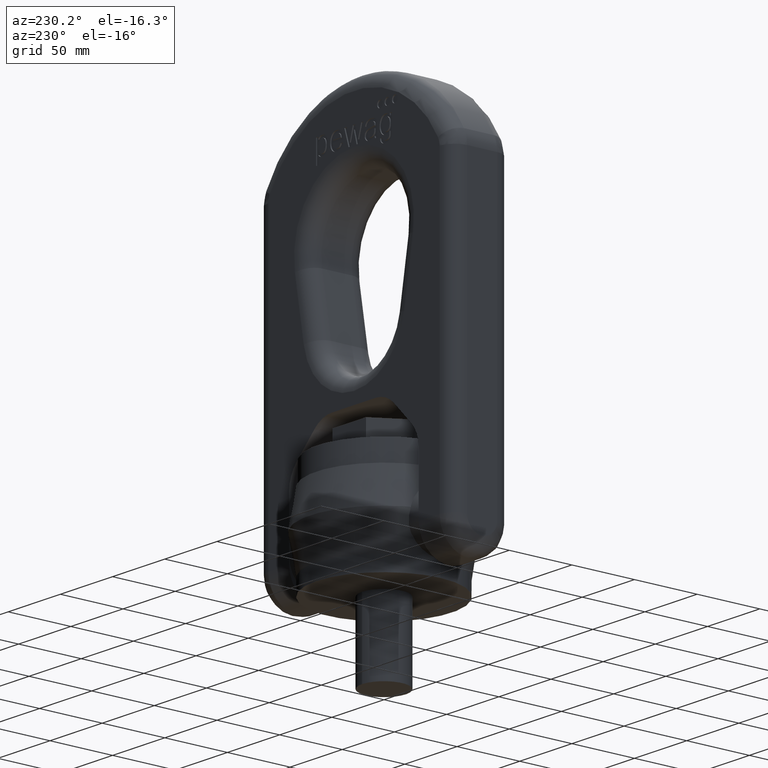
[diagram: clean part render]
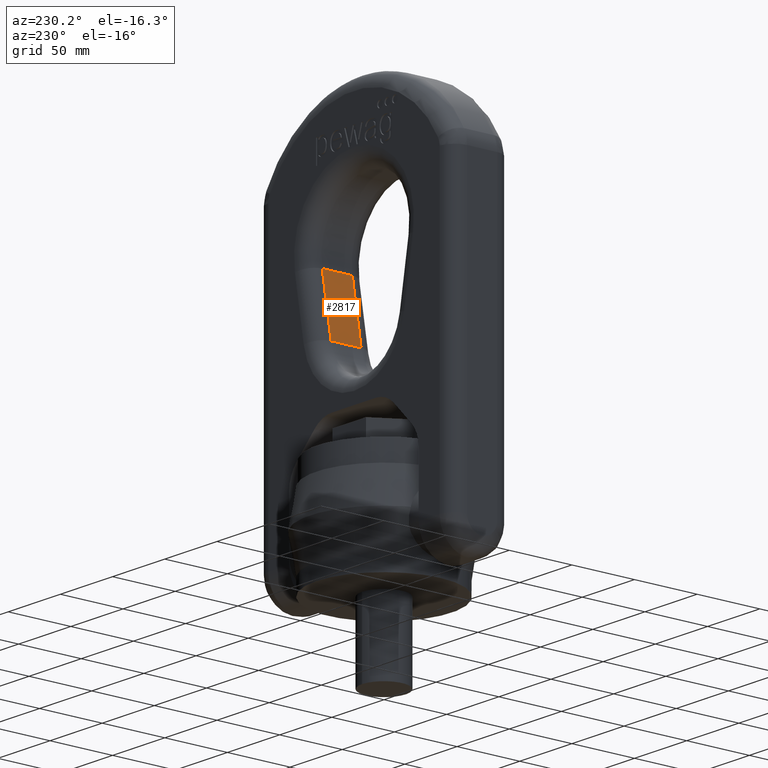
[diagram: same view with one face highlighted and labeled with its STEP entity id]
A machine part, auxiliary view. The second image highlights one B-rep face of the part: STEP entity #2817.
In plain terms, the highlighted planar face has unit normal (0.9848, 0, -0.1736).
Its self-contained STEP definition (entity closure, byte-faithful):
#1860=LINE('',#7732,#2168);
#1861=LINE('',#7736,#2169);
#1862=LINE('',#7738,#2170);
#1863=LINE('',#7740,#2171);
#2168=VECTOR('',#6335,1.);
#2169=VECTOR('',#6340,1.);
#2170=VECTOR('',#6341,1.);
#2171=VECTOR('',#6342,1.);
#2457=FACE_OUTER_BOUND('',#3195,.T.);
#2688=PLANE('',#5899);
#2817=ADVANCED_FACE('',(#2457),#2688,.F.);
#3195=EDGE_LOOP('',(#3727,#3728,#3729,#3730));
#3727=ORIENTED_EDGE('',*,*,#5355,.T.);
#3728=ORIENTED_EDGE('',*,*,#5357,.T.);
#3729=ORIENTED_EDGE('',*,*,#5358,.F.);
#3730=ORIENTED_EDGE('',*,*,#5359,.T.);
#4915=VERTEX_POINT('',#7731);
#4916=VERTEX_POINT('',#7733);
#4917=VERTEX_POINT('',#7737);
#4918=VERTEX_POINT('',#7739);
#5355=EDGE_CURVE('',#4916,#4915,#1860,.T.);
#5357=EDGE_CURVE('',#4915,#4917,#1861,.T.);
#5358=EDGE_CURVE('',#4918,#4917,#1862,.T.);
#5359=EDGE_CURVE('',#4918,#4916,#1863,.T.);
#5899=AXIS2_PLACEMENT_3D('',#7741,#6343,#6344);
#6335=DIRECTION('',(0.,1.,0.));
#6340=DIRECTION('',(-0.173648177666931,4.0684217855581E-16,-0.984807753012208));
#6341=DIRECTION('',(0.,1.,0.));
#6342=DIRECTION('',(0.173648177666931,0.,0.984807753012208));
#6343=DIRECTION('',(0.984807753012208,0.,-0.173648177666931));
#6344=DIRECTION('',(-0.173648177666931,0.,-0.984807753012208));
#7731=CARTESIAN_POINT('',(44.8087527620555,11.9999999999999,217.599007916155));
#7732=CARTESIAN_POINT('',(44.8087527620555,-24.,217.599007916155));
#7733=CARTESIAN_POINT('',(44.8087527620555,-12.,217.599007916155));
#7736=CARTESIAN_POINT('',(36.3239733391934,11.9999999999999,169.47943263181));
#7737=CARTESIAN_POINT('',(36.3239733391934,11.9999999999999,169.47943263181));
#7738=CARTESIAN_POINT('',(36.3239733391934,-24.,169.47943263181));
#7739=CARTESIAN_POINT('',(36.3239733391934,-12.,169.47943263181));
#7740=CARTESIAN_POINT('',(44.8087527620555,-12.,217.599007916155));
#7741=CARTESIAN_POINT('',(44.8087527620555,-24.,217.599007916155));